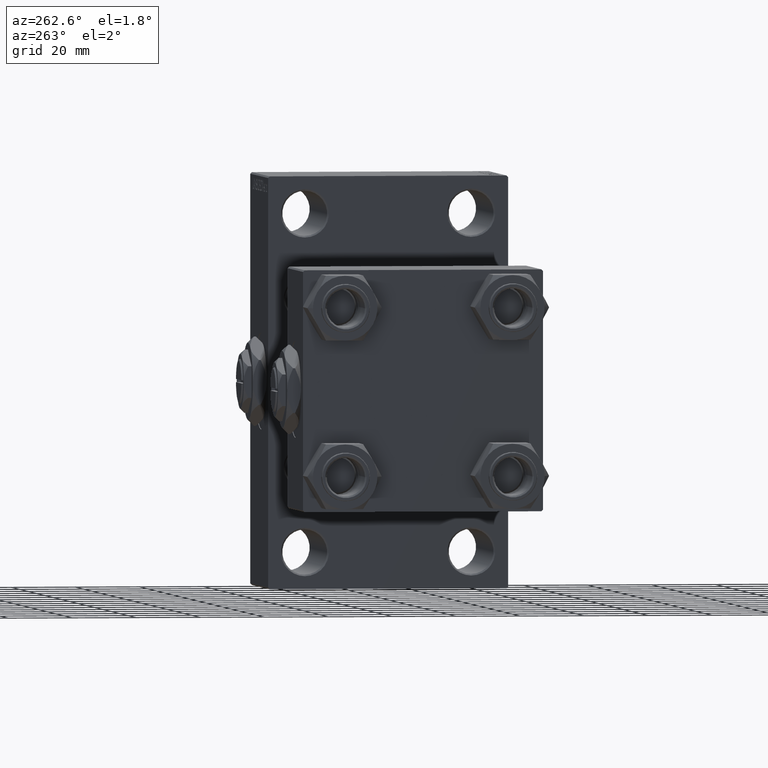
[diagram: clean part render]
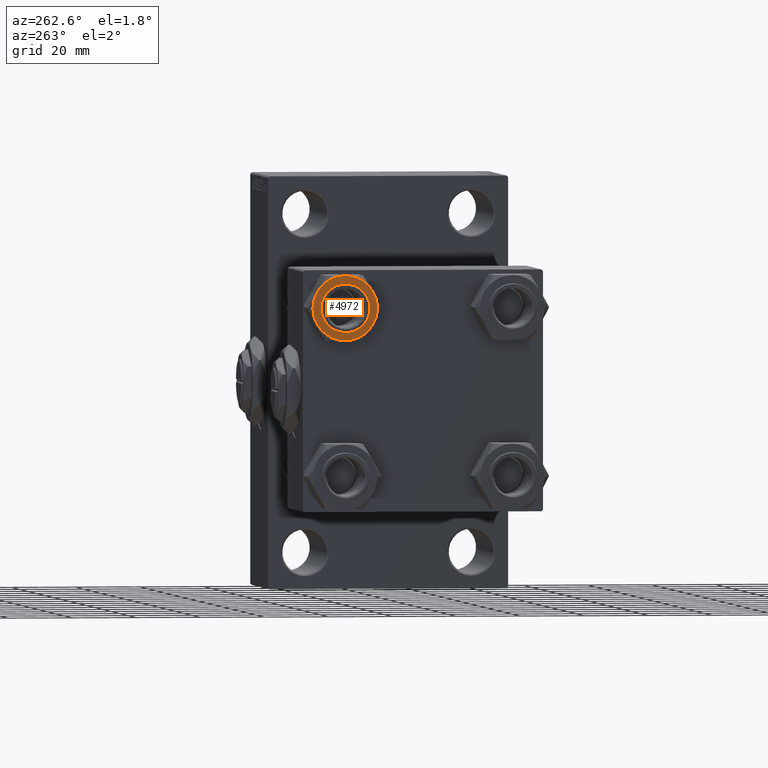
[diagram: same view with one face highlighted and labeled with its STEP entity id]
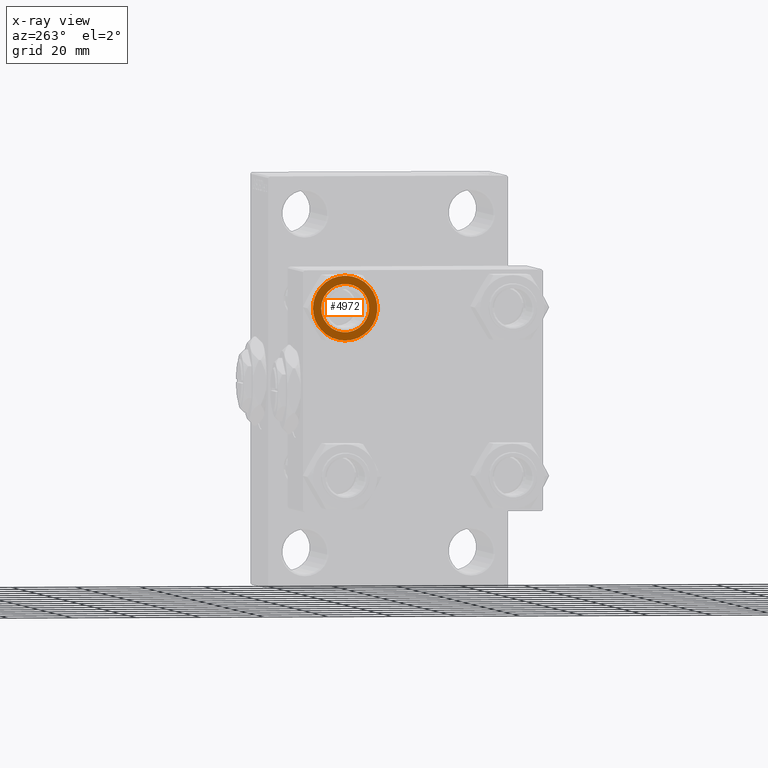
[diagram: x-ray of the same camera — body ghosted, the highlighted face saturated]
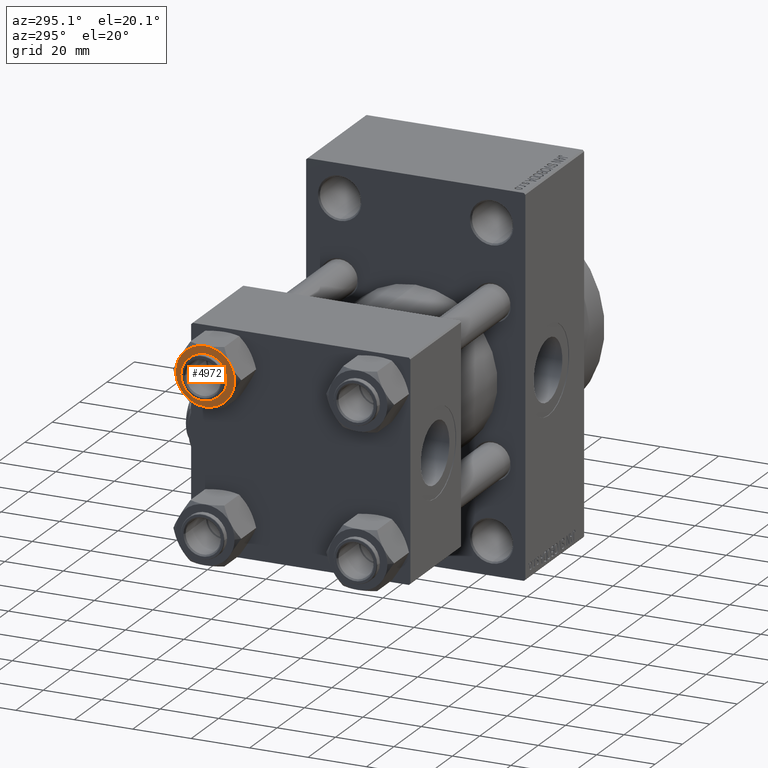
[diagram: same view with one face highlighted and labeled with its STEP entity id]
A machine part, auxiliary view. The second image highlights one B-rep face of the part: STEP entity #4972.
The next image is the same camera in x-ray: the body ghosted, the highlighted face saturated — about 0% of this face is hidden behind the body in this view.
A second angle (auxiliary view) of the same face is appended — the face is thin or edge-on in the first view.
In plain terms, the highlighted planar face has unit normal (1, 0, 0).
Its self-contained STEP definition (entity closure, byte-faithful):
#1288 = FACE_BOUND ( 'NONE', #3004, .T. ) ;
#1668 = CARTESIAN_POINT ( 'NONE',  ( 0.000000000000000000, 0.000000000000000000, 0.000000000000000000 ) ) ;
#1758 = DIRECTION ( 'NONE',  ( 0.000000000000000000, 0.000000000000000000, 1.000000000000000000 ) ) ;
#2305 = DIRECTION ( 'NONE',  ( 1.000000000000000000, 0.000000000000000000, 0.000000000000000000 ) ) ;
#3004 = EDGE_LOOP ( 'NONE', ( #14939, #19628 ) ) ;
#3045 = VERTEX_POINT ( 'NONE', #7491 ) ;
#3171 = VERTEX_POINT ( 'NONE', #32396 ) ;
#4972 = ADVANCED_FACE ( 'NONE', ( #1288, #6002 ), #13484, .F. ) ;
#5267 = CARTESIAN_POINT ( 'NONE',  ( 0.000000000000000000, 0.000000000000000000, 0.000000000000000000 ) ) ;
#5583 = DIRECTION ( 'NONE',  ( 0.000000000000000000, -0.000000000000000000, -1.000000000000000000 ) ) ;
#5903 = DIRECTION ( 'NONE',  ( 0.000000000000000000, -0.000000000000000000, -1.000000000000000000 ) ) ;
#5936 = DIRECTION ( 'NONE',  ( 0.000000000000000000, 0.000000000000000000, 1.000000000000000000 ) ) ;
#6002 = FACE_OUTER_BOUND ( 'NONE', #26454, .T. ) ;
#6076 = DIRECTION ( 'NONE',  ( -1.000000000000000000, 0.000000000000000000, 0.000000000000000000 ) ) ;
#6154 = DIRECTION ( 'NONE',  ( 0.000000000000000000, -0.000000000000000000, -1.000000000000000000 ) ) ;
#7100 = CIRCLE ( 'NONE', #34988, 10.06321519197518199 ) ;
#7135 = AXIS2_PLACEMENT_3D ( 'NONE', #40804, #7143, #14634 ) ;
#7143 = DIRECTION ( 'NONE',  ( 0.000000000000000000, -0.000000000000000000, -1.000000000000000000 ) ) ;
#7491 = CARTESIAN_POINT ( 'NONE',  ( 0.000000000000000000, 10.06321519197518022, 0.000000000000000000 ) ) ;
#7703 = AXIS2_PLACEMENT_3D ( 'NONE', #33287, #26559, #26060 ) ;
#9407 = VERTEX_POINT ( 'NONE', #48343 ) ;
#10027 = EDGE_CURVE ( 'NONE', #18160, #3171, #44879, .T. ) ;
#13484 = PLANE ( 'NONE',  #14478 ) ;
#13766 = DIRECTION ( 'NONE',  ( 0.000000000000000000, 0.000000000000000000, 1.000000000000000000 ) ) ;
#13896 = EDGE_CURVE ( 'NONE', #39647, #9407, #39372, .T. ) ;
#14478 = AXIS2_PLACEMENT_3D ( 'NONE', #5267, #28717, #21234 ) ;
#14634 = DIRECTION ( 'NONE',  ( -1.000000000000000000, 0.000000000000000000, 0.000000000000000000 ) ) ;
#14939 = ORIENTED_EDGE ( 'NONE', *, *, #22144, .F. ) ;
#15866 = AXIS2_PLACEMENT_3D ( 'NONE', #29235, #13766, #2305 ) ;
#16886 = DIRECTION ( 'NONE',  ( -1.000000000000000000, 0.000000000000000000, 0.000000000000000000 ) ) ;
#17192 = ORIENTED_EDGE ( 'NONE', *, *, #44811, .F. ) ;
#17424 = CARTESIAN_POINT ( 'NONE',  ( 0.000000000000000000, 0.000000000000000000, 0.000000000000000000 ) ) ;
#18160 = VERTEX_POINT ( 'NONE', #23352 ) ;
#19628 = ORIENTED_EDGE ( 'NONE', *, *, #10027, .F. ) ;
#20142 = CARTESIAN_POINT ( 'NONE',  ( 1.502314598737159623E-15, -10.06321519197518199, 0.000000000000000000 ) ) ;
#20483 = DIRECTION ( 'NONE',  ( 0.000000000000000000, -0.000000000000000000, -1.000000000000000000 ) ) ;
#21234 = DIRECTION ( 'NONE',  ( -1.000000000000000000, 0.000000000000000000, -0.000000000000000000 ) ) ;
#21354 = AXIS2_PLACEMENT_3D ( 'NONE', #17424, #5936, #24162 ) ;
#21757 = CARTESIAN_POINT ( 'NONE',  ( 10.06321519197518199, 0.000000000000000000, 0.000000000000000000 ) ) ;
#22144 = EDGE_CURVE ( 'NONE', #3171, #18160, #34056, .T. ) ;
#22309 = AXIS2_PLACEMENT_3D ( 'NONE', #39409, #20483, #35685 ) ;
#23172 = ORIENTED_EDGE ( 'NONE', *, *, #13896, .F. ) ;
#23352 = CARTESIAN_POINT ( 'NONE',  ( 7.500000000000000000, 9.184850993605147944E-16, 0.000000000000000000 ) ) ;
#24162 = DIRECTION ( 'NONE',  ( 1.000000000000000000, 0.000000000000000000, 0.000000000000000000 ) ) ;
#25162 = CIRCLE ( 'NONE', #37890, 10.06321519197518199 ) ;
#26060 = DIRECTION ( 'NONE',  ( -1.000000000000000000, 0.000000000000000000, 0.000000000000000000 ) ) ;
#26454 = EDGE_LOOP ( 'NONE', ( #29430, #23172, #17192, #42516, #26614, #43306, #48165 ) ) ;
#26559 = DIRECTION ( 'NONE',  ( 0.000000000000000000, -0.000000000000000000, -1.000000000000000000 ) ) ;
#26614 = ORIENTED_EDGE ( 'NONE', *, *, #39439, .F. ) ;
#28717 = DIRECTION ( 'NONE',  ( 0.000000000000000000, 0.000000000000000000, -1.000000000000000000 ) ) ;
#29235 = CARTESIAN_POINT ( 'NONE',  ( 0.000000000000000000, 0.000000000000000000, 0.000000000000000000 ) ) ;
#29430 = ORIENTED_EDGE ( 'NONE', *, *, #37640, .F. ) ;
#30071 = EDGE_CURVE ( 'NONE', #41556, #42812, #49320, .T. ) ;
#32396 = CARTESIAN_POINT ( 'NONE',  ( -7.500000000000000000, 0.000000000000000000, 0.000000000000000000 ) ) ;
#32683 = CARTESIAN_POINT ( 'NONE',  ( 0.000000000000000000, 0.000000000000000000, 0.000000000000000000 ) ) ;
#33253 = CARTESIAN_POINT ( 'NONE',  ( 0.000000000000000000, 0.000000000000000000, 0.000000000000000000 ) ) ;
#33287 = CARTESIAN_POINT ( 'NONE',  ( 0.000000000000000000, 0.000000000000000000, 0.000000000000000000 ) ) ;
#33378 = CIRCLE ( 'NONE', #15866, 10.06321519197518199 ) ;
#33762 = CARTESIAN_POINT ( 'NONE',  ( 8.715000000000005187, 5.031607595987590109, 0.000000000000000000 ) ) ;
#33832 = DIRECTION ( 'NONE',  ( -1.000000000000000000, 0.000000000000000000, 0.000000000000000000 ) ) ;
#34056 = CIRCLE ( 'NONE', #21354, 7.500000000000000000 ) ;
#34988 = AXIS2_PLACEMENT_3D ( 'NONE', #41299, #6154, #33832 ) ;
#35403 = AXIS2_PLACEMENT_3D ( 'NONE', #33253, #5583, #6076 ) ;
#35685 = DIRECTION ( 'NONE',  ( -1.000000000000000000, 0.000000000000000000, 0.000000000000000000 ) ) ;
#36170 = DIRECTION ( 'NONE',  ( 1.000000000000000000, 0.000000000000000000, 0.000000000000000000 ) ) ;
#37640 = EDGE_CURVE ( 'NONE', #9407, #3045, #25162, .T. ) ;
#37890 = AXIS2_PLACEMENT_3D ( 'NONE', #1668, #5903, #16886 ) ;
#39003 = CARTESIAN_POINT ( 'NONE',  ( -8.715000000000006963, -5.031607595987586556, 0.000000000000000000 ) ) ;
#39335 = AXIS2_PLACEMENT_3D ( 'NONE', #32683, #1758, #36170 ) ;
#39372 = CIRCLE ( 'NONE', #35403, 10.06321519197518199 ) ;
#39409 = CARTESIAN_POINT ( 'NONE',  ( 0.000000000000000000, 0.000000000000000000, 0.000000000000000000 ) ) ;
#39439 = EDGE_CURVE ( 'NONE', #47972, #41556, #44316, .T. ) ;
#39647 = VERTEX_POINT ( 'NONE', #39003 ) ;
#40804 = CARTESIAN_POINT ( 'NONE',  ( 0.000000000000000000, 0.000000000000000000, 0.000000000000000000 ) ) ;
#41299 = CARTESIAN_POINT ( 'NONE',  ( 0.000000000000000000, 0.000000000000000000, 0.000000000000000000 ) ) ;
#41339 = CIRCLE ( 'NONE', #7135, 10.06321519197518199 ) ;
#41556 = VERTEX_POINT ( 'NONE', #43048 ) ;
#42516 = ORIENTED_EDGE ( 'NONE', *, *, #30071, .F. ) ;
#42812 = VERTEX_POINT ( 'NONE', #20142 ) ;
#43048 = CARTESIAN_POINT ( 'NONE',  ( 8.715000000000003411, -5.031607595987592774, 0.000000000000000000 ) ) ;
#43306 = ORIENTED_EDGE ( 'NONE', *, *, #44835, .F. ) ;
#44293 = VERTEX_POINT ( 'NONE', #33762 ) ;
#44316 = CIRCLE ( 'NONE', #7703, 10.06321519197518199 ) ;
#44587 = EDGE_CURVE ( 'NONE', #44293, #3045, #33378, .T. ) ;
#44811 = EDGE_CURVE ( 'NONE', #42812, #39647, #7100, .T. ) ;
#44835 = EDGE_CURVE ( 'NONE', #44293, #47972, #41339, .T. ) ;
#44879 = CIRCLE ( 'NONE', #39335, 7.500000000000000000 ) ;
#47972 = VERTEX_POINT ( 'NONE', #21757 ) ;
#48165 = ORIENTED_EDGE ( 'NONE', *, *, #44587, .T. ) ;
#48343 = CARTESIAN_POINT ( 'NONE',  ( -8.715000000000003411, 5.031607595987592774, 0.000000000000000000 ) ) ;
#49320 = CIRCLE ( 'NONE', #22309, 10.06321519197518199 ) ;